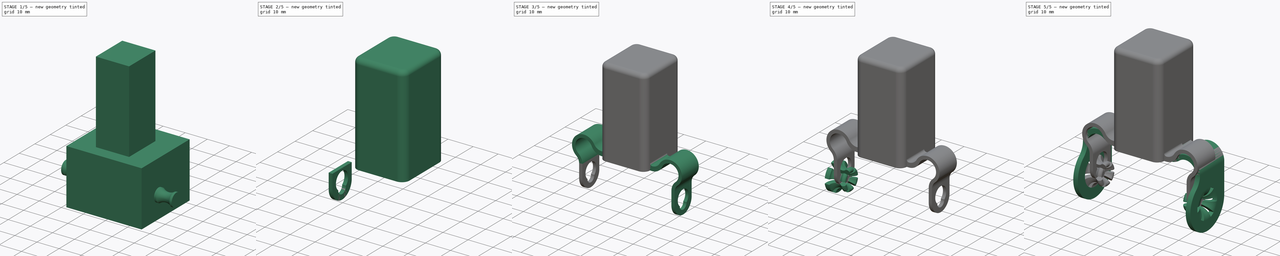
[diagram: build sequence overview — one tinted view per stage of 5, left to right]
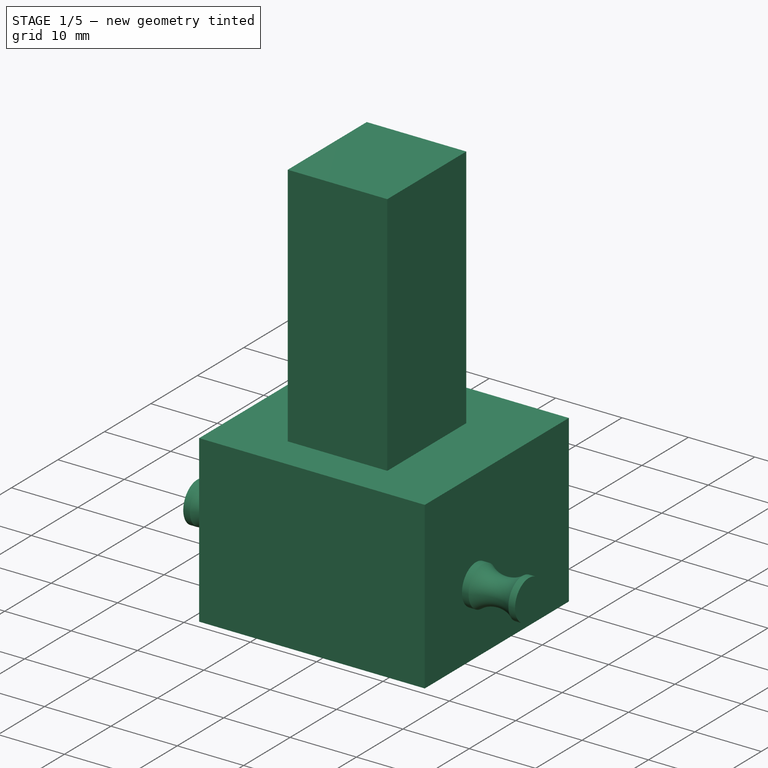
[diagram: stage 1 of 5 — iso view after this stage's code; geometry added in this stage tinted green]
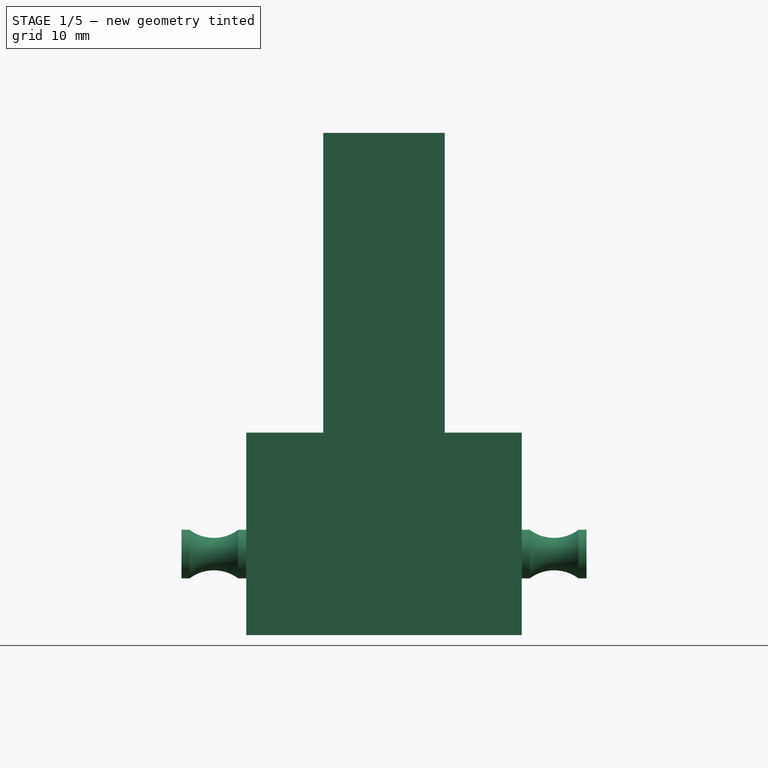
[diagram: stage 1 of 5 — front view after this stage's code; geometry added in this stage tinted green]
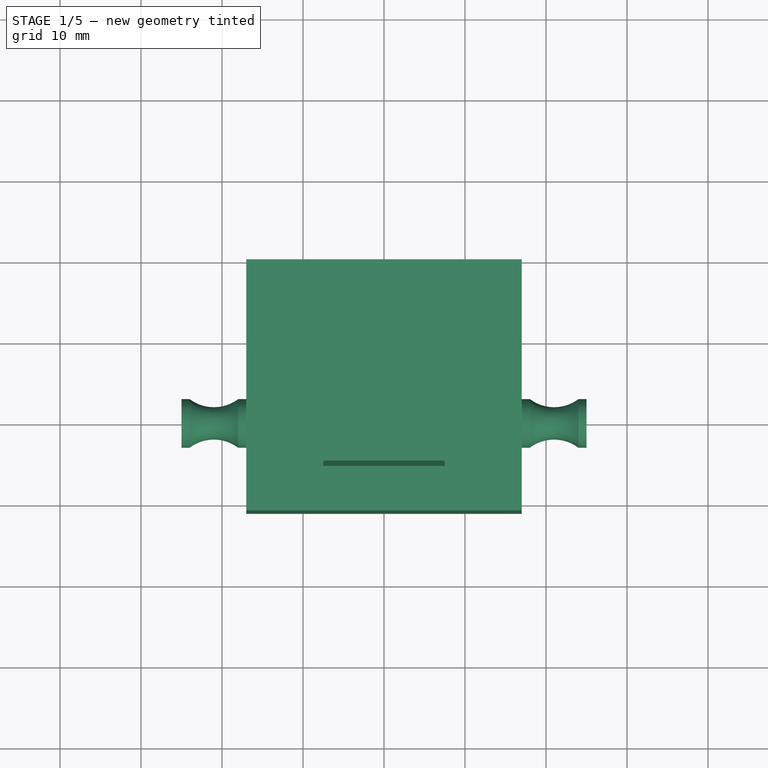
[diagram: stage 1 of 5 — top view after this stage's code; geometry added in this stage tinted green]
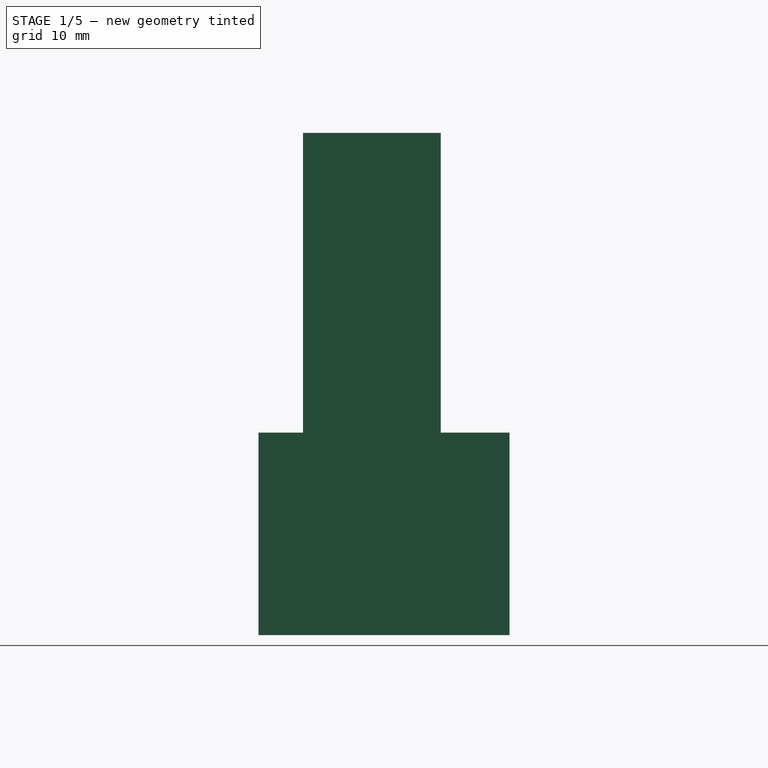
[diagram: stage 1 of 5 — right view after this stage's code; geometry added in this stage tinted green]
FCSTD DOCUMENT  (FreeCAD 1.0R39109 (Git))
Label: press machine rack shield
License: All rights reserved
objects: Sketcher::SketchObject×11, PartDesign::Pad×9, PartDesign::SubShapeBinder×5, PartDesign::Mirrored×3, PartDesign::Body×3, PartDesign::Revolution×2, PartDesign::Thickness×2, PartDesign::PolarPattern×1, PartDesign::Pocket×1
note: 80 computed .brp shape members not serialized (recipe doc carries the construction recipe); baked Part::Feature solids carry a one-line shape summary decoded from their .brp

FEATURE [Sketcher::SketchObject] Sketch014
  ArcFitTolerance = 1e-06
  AttachmentSupport = -> [XZ_Plane002]
  FullyConstrained = true
  MakeInternals = false
  MapMode = 5
  Placement = pos=(0,0,0) rot=(1,0,0;1.5708rad)
  sketch-geometry (6):
    g0: LineSegment StartX=-24 StartY=3 StartZ=0 EndX=-25 EndY=3 EndZ=0
    g1: LineSegment StartX=-25 StartY=3 StartZ=0 EndX=-25 EndY=0 EndZ=0
    g2: LineSegment StartX=-25 StartY=0 StartZ=0 EndX=-17 EndY=0 EndZ=0
    g3: LineSegment StartX=-17 StartY=0 StartZ=0 EndX=-17 EndY=3 EndZ=0
    g4: LineSegment StartX=-17 StartY=3 StartZ=0 EndX=-18 EndY=3 EndZ=0
    g5: ArcOfCircle CenterX=-21 CenterY=7 CenterZ=0 NormalX=0 NormalY=0 NormalZ=1 AngleXU=0 Radius=5 StartAngle=4.06889 EndAngle=5.35589
  constraints (19):
    c: Coincident(g0,g1)
    c: Coincident(g1,g2)
    c: Horizontal(g2)
    c: Coincident(g2,g3)
    c: Coincident(g3,g4)
    c: Coincident(g5,g0)
    c: Coincident(g5,g4)
    c: Horizontal(g0)
    c: Horizontal(g0,g4)
    c: Horizontal(g4)
    c: Vertical(g1)
    c: Vertical(g3)
    c: Equal(g0,g4)
    c: Distance(g0,g0) = 1
    c: Distance(g2,g2) = 8
    c: Distance(g1,g1) = 3
    c: Distance(g5,g2) = 2
    c: PointOnObject(g2,g-1)
    c: DistanceX(g2,g-1) = 17
FEATURE [PartDesign::Revolution] Revolution002
  Angle = 360
  Angle2 = 60
  Axis = (1,0,0)
  Base = (0,0,0)
  Placement = pos=(0,0,0) rot=(1,0,0;1.5708rad)
  Profile = -> Sketch014
  ReferenceAxis = -> Sketch014 [H_Axis]
  Suppressed = false
  Type = 0
FEATURE [Sketcher::SketchObject] Sketch016
  ArcFitTolerance = 1e-06
  AttachmentSupport = -> [XY_Plane002]
  FullyConstrained = true
  MakeInternals = false
  MapMode = 5
  sketch-geometry (4):
    g0: LineSegment StartX=0 StartY=20 StartZ=0 EndX=-17 EndY=20 EndZ=0
    g1: LineSegment StartX=-17 StartY=20 StartZ=0 EndX=-17 EndY=-11 EndZ=0
    g2: LineSegment StartX=-17 StartY=-11 StartZ=0 EndX=0 EndY=-11 EndZ=0
    g3: LineSegment StartX=0 StartY=-11 StartZ=0 EndX=0 EndY=20 EndZ=0
  constraints (12):
    c: Coincident(g0,g1)
    c: Coincident(g1,g2)
    c: Coincident(g2,g3)
    c: Coincident(g3,g0)
    c: Horizontal(g0)
    c: Horizontal(g2)
    c: Vertical(g1)
    c: Vertical(g3)
    c: PointOnObject(g0,g-2)
    c: Distance(g2,g2) = 17
    c: DistanceY(g1,g-1) = 11
    c: DistanceY(g-1,g0) = 20
FEATURE [PartDesign::Pad] Pad011
  BaseFeature = -> Revolution002
  Direction = (0,0,1)
  Length = 15
  Length2 = 10
  Placement = pos=(0,0,0) rot=(1,0,0;1.5708rad)
  Profile = -> Sketch016
  ReferenceAxis = -> Sketch016 [N_Axis]
  Suppressed = false
  Type = 4
FEATURE [Sketcher::SketchObject] Sketch017
  ArcFitTolerance = 1e-06
  AttachmentSupport = -> [Pad011]
  FullyConstrained = true
  MakeInternals = false
  MapMode = 5
  Placement = pos=(0,0,15) rot=(0,0,1;3.14159rad)
  sketch-geometry (4):
    g0: LineSegment StartX=0 StartY=5.5 StartZ=0 EndX=0 EndY=-11.5 EndZ=0
    g1: LineSegment StartX=0 StartY=-11.5 StartZ=0 EndX=7.5 EndY=-11.5 EndZ=0
    g2: LineSegment StartX=7.5 StartY=-11.5 StartZ=0 EndX=7.5 EndY=5.5 EndZ=0
    g3: LineSegment StartX=7.5 StartY=5.5 StartZ=0 EndX=0 EndY=5.5 EndZ=0
  constraints (12):
    c: Coincident(g0,g1)
    c: Coincident(g1,g2)
    c: Coincident(g2,g3)
    c: Coincident(g3,g0)
    c: Vertical(g0)
    c: Vertical(g2)
    c: Horizontal(g1)
    c: Horizontal(g3)
    c: PointOnObject(g0,g-2)
    c: Distance(g2,g2) = 17
    c: DistanceY(g-1,g0) = 5.5
    c: DistanceX(g3,g3) = 7.5
FEATURE [PartDesign::Pad] Pad012
  BaseFeature = -> Pad011
  Direction = (0,0,1)
  Length = 37
  Length2 = 10
  Placement = pos=(0,0,0) rot=(1,0,0;1.5708rad)
  Profile = -> Sketch017
  ReferenceAxis = -> Sketch017 [N_Axis]
  Suppressed = false
  Type = 0
FEATURE [PartDesign::Mirrored] Mirrored002
  BaseFeature = -> Pad012
  MirrorPlane = -> YZ_Plane002
  Placement = pos=(0,0,0) rot=(1,0,0;1.5708rad)
  Refine = true
  Suppressed = false
  TransformMode = 1
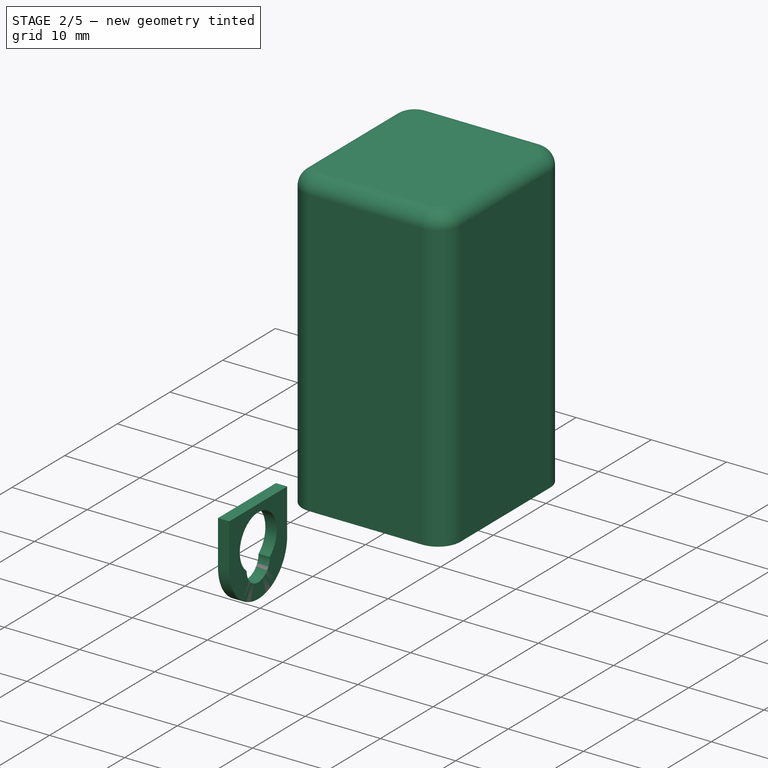
[diagram: stage 2 of 5 — iso view after this stage's code; geometry added in this stage tinted green]
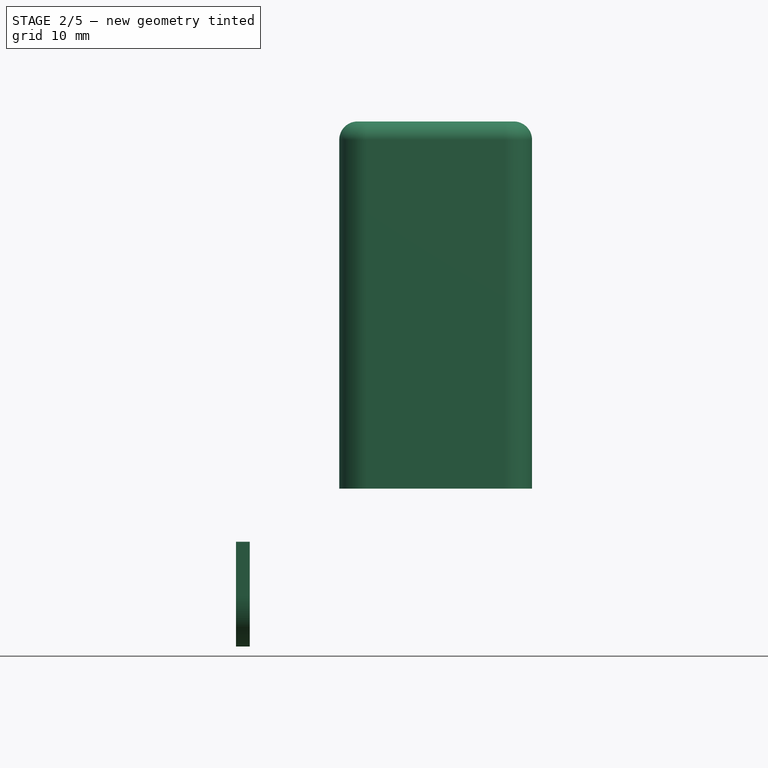
[diagram: stage 2 of 5 — front view after this stage's code; geometry added in this stage tinted green]
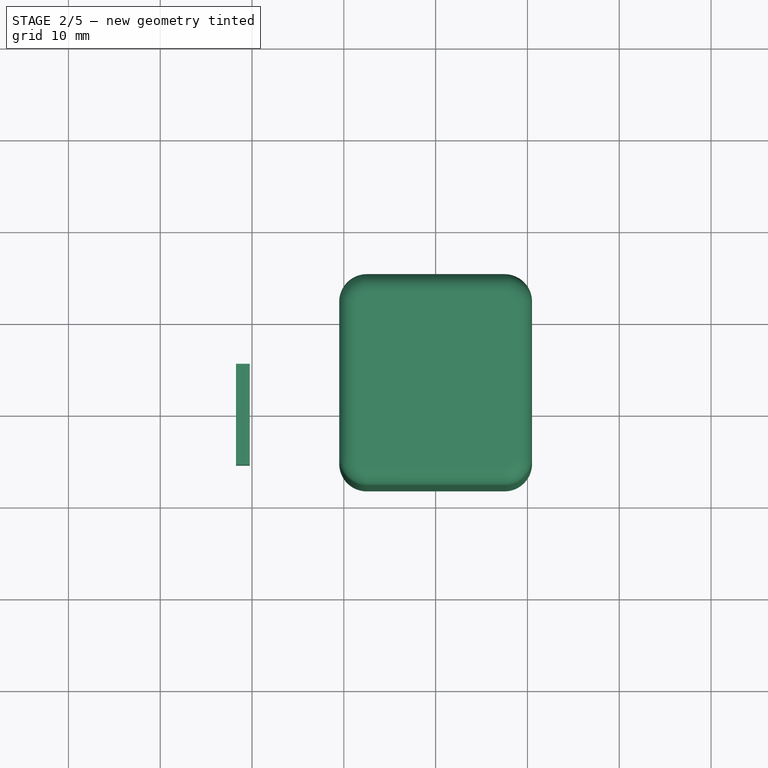
[diagram: stage 2 of 5 — top view after this stage's code; geometry added in this stage tinted green]
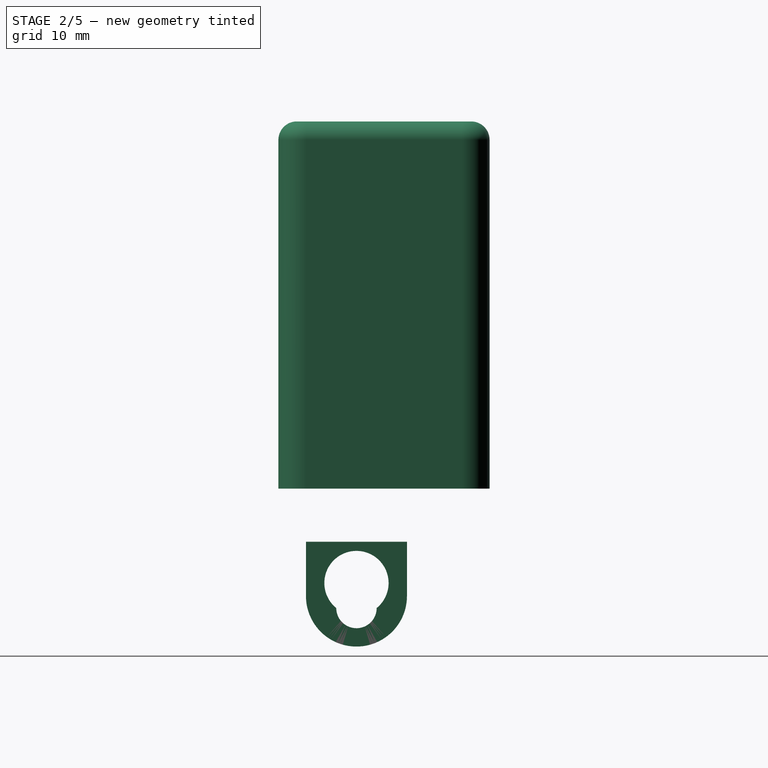
[diagram: stage 2 of 5 — right view after this stage's code; geometry added in this stage tinted green]
FEATURE [PartDesign::Body] Body004
  AllowCompound = true
  Group = -> [Binder002,Binder003,Pad013,Thickness001,Sketch018,Pad014,Binder004,Sketch019,Revolution003,PolarPattern001,Sketch023,Sketch020,Pad015,Sketch022,Pad016,Sketch,Pocket,Mirrored]
  Origin = -> Origin004
  Tip = -> Mirrored
FEATURE [PartDesign::SubShapeBinder] Binder
  BindCopyOnChange = 0
  BindMode = 0
  ClaimChildren = false
  Context = -> Body [Binder.]
  Fuse = false
  MakeFace = true
  OffsetFill = false
  OffsetIntersection = false
  OffsetJoinType = 0
  OffsetOpenResult = false
  PartialLoad = false
  Relative = true
  Support = -> [Body002[Mirrored002.Face13]]
  _Version = 2
FEATURE [PartDesign::SubShapeBinder] Binder005
  BindCopyOnChange = 0
  BindMode = 0
  ClaimChildren = false
  Context = -> Body [Binder005.]
  Fuse = false
  MakeFace = true
  Offset = 1
  OffsetFill = false
  OffsetIntersection = false
  OffsetJoinType = 0
  OffsetOpenResult = false
  PartialLoad = false
  Relative = true
  Support = -> [Binder[Edge8,Edge5,Edge6,Edge7]]
  _Version = 2
FEATURE [PartDesign::Pad] Pad
  Direction = (0,0,-1)
  Length = 38
  Length2 = 10
  Profile = -> Binder005
  Reversed = true
  Suppressed = false
  Type = 0
FEATURE [PartDesign::Thickness] Thickness
  Base = -> Pad [Face9]
  BaseFeature = -> Pad
  Intersection = false
  Join = 0
  Mode = 0
  SupportTransform = false
  Suppressed = false
  Value = 2
FEATURE [Sketcher::SketchObject] Sketch025
  ArcFitTolerance = 1e-06
  AttachmentOffset = pos=(0,0,-21) rot=(0,0,1;0rad)
  AttachmentSupport = -> [YZ_Plane]
  FullyConstrained = true
  MakeInternals = false
  MapMode = 5
  Placement = pos=(-21,0,0) rot=(0.57735,0.57735,0.57735;2.0944rad)
  sketch-geometry (6):
    g0: ArcOfCircle CenterX=0 CenterY=2 CenterZ=0 NormalX=0 NormalY=0 NormalZ=1 AngleXU=0 Radius=2.2 StartAngle=3.14159 EndAngle=6.28319
    g1: ArcOfCircle CenterX=1e-16 CenterY=4.72213 CenterZ=0 NormalX=0 NormalY=0 NormalZ=1 AngleXU=0 Radius=3.5 StartAngle=5.3921 EndAngle=10.3159
    g2: ArcOfCircle CenterX=0 CenterY=3.3 CenterZ=0 NormalX=0 NormalY=0 NormalZ=1 AngleXU=0 Radius=5.5 StartAngle=3.14159 EndAngle=6.28319
    g3: LineSegment StartX=-5.5 StartY=3.3 StartZ=0 EndX=-5.5 EndY=9.22213 EndZ=0
    g4: LineSegment StartX=5.5 StartY=3.3 StartZ=0 EndX=5.5 EndY=9.22213 EndZ=0
    g5: LineSegment StartX=5.5 StartY=9.22213 StartZ=0 EndX=-5.5 EndY=9.22213 EndZ=0
  constraints (21):
    c: PointOnObject(g0,g-2)
    c: Horizontal(g0,g0)
    c: Horizontal(g0,g0)
    c: Radius(g0) = 2.2
    c: Distance(g0,g-1) = 2
    c: Coincident(g1,g0)
    c: Coincident(g1,g0)
    c: Radius(g1) = 3.5
    c: PointOnObject(g2,g-2)
    c: Horizontal(g2,g2)
    c: Horizontal(g2,g2)
    c: Coincident(g3,g2)
    c: Vertical(g3)
    c: Coincident(g4,g2)
    c: Vertical(g4)
    c: Coincident(g5,g4)
    c: Coincident(g5,g3)
    c: Horizontal(g5)
    c: Distance(g1,g4) = 2
    c: Distance(g0,g2) = 2
    c: Distance(g1,g5) = 1
FEATURE [PartDesign::Pad] Pad017
  BaseFeature = -> Thickness
  Direction = (1,0,0)
  Length = 1.5
  Length2 = 10
  Midplane = true
  Profile = -> Sketch025
  ReferenceAxis = -> Sketch025 [N_Axis]
  Suppressed = false
  Type = 0
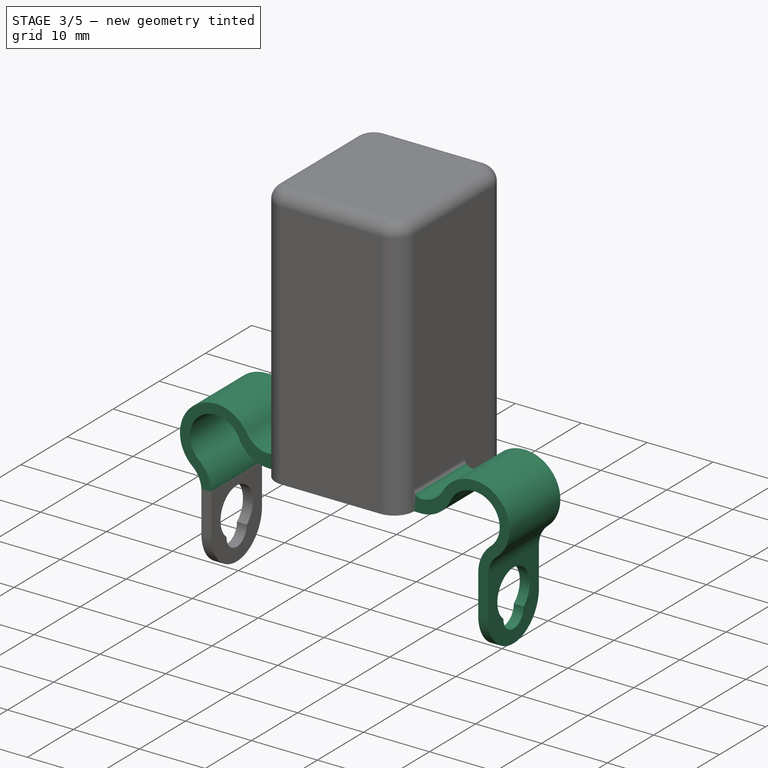
[diagram: stage 3 of 5 — iso view after this stage's code; geometry added in this stage tinted green]
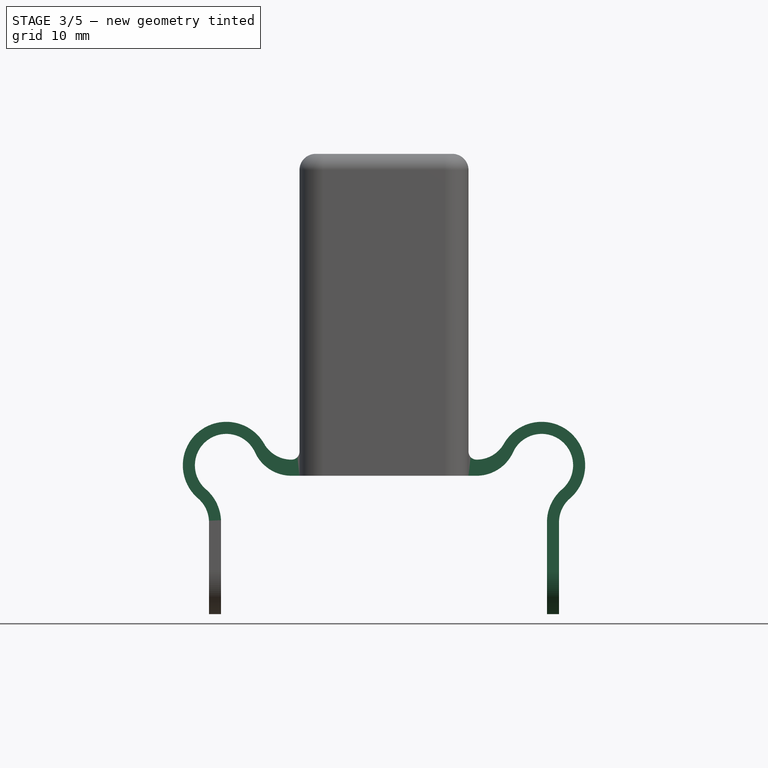
[diagram: stage 3 of 5 — front view after this stage's code; geometry added in this stage tinted green]
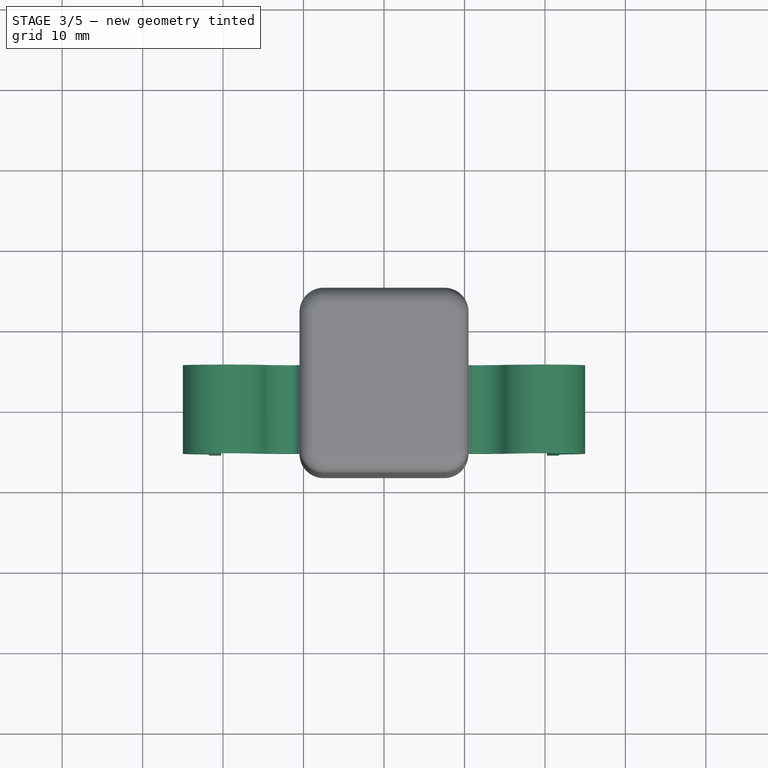
[diagram: stage 3 of 5 — top view after this stage's code; geometry added in this stage tinted green]
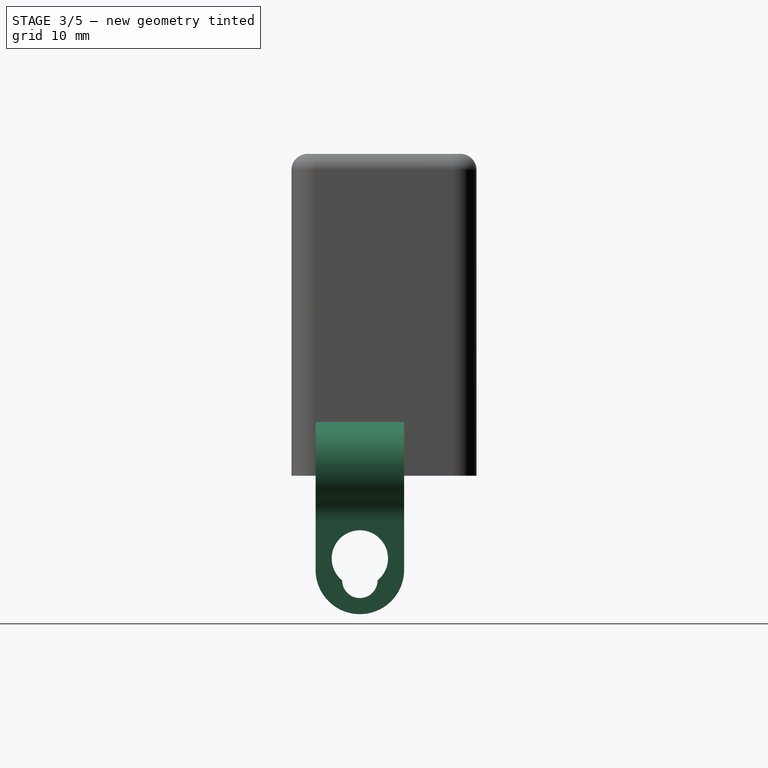
[diagram: stage 3 of 5 — right view after this stage's code; geometry added in this stage tinted green]
FEATURE [PartDesign::Body] Body002
  AllowCompound = true
  Group = -> [Sketch014,Revolution002,Sketch016,Pad011,Sketch017,Pad012,Mirrored002]
  Origin = -> Origin002
  Tip = -> Mirrored002
FEATURE [PartDesign::SubShapeBinder] Binder002
  BindCopyOnChange = 0
  BindMode = 0
  ClaimChildren = false
  Context = -> Body004 [Binder002.]
  Fuse = false
  MakeFace = true
  OffsetFill = false
  OffsetIntersection = false
  OffsetJoinType = 0
  OffsetOpenResult = false
  PartialLoad = false
  Relative = true
  Support = -> [Body002[Mirrored002.Face13]]
  _Version = 2
FEATURE [PartDesign::SubShapeBinder] Binder003
  BindCopyOnChange = 0
  BindMode = 0
  ClaimChildren = false
  Context = -> Body004 [Binder003.]
  Fuse = false
  MakeFace = true
  Offset = 1
  OffsetFill = false
  OffsetIntersection = false
  OffsetJoinType = 0
  OffsetOpenResult = false
  PartialLoad = false
  Relative = true
  Support = -> [Binder002[Edge8,Edge5,Edge6,Edge7]]
  _Version = 2
FEATURE [PartDesign::Pad] Pad013
  Direction = (0,0,-1)
  Length = 38
  Length2 = 10
  Profile = -> Binder003
  Reversed = true
  Suppressed = false
  Type = 0
FEATURE [PartDesign::Thickness] Thickness001
  Base = -> Pad013 [Face9]
  BaseFeature = -> Pad013
  Intersection = false
  Join = 0
  Mode = 0
  SupportTransform = false
  Suppressed = false
  Value = 2
FEATURE [Sketcher::SketchObject] Sketch026
  ArcFitTolerance = 1e-06
  AttachmentSupport = -> [XZ_Plane]
  ExternalGeometry = -> [Binder,Pad017]
  FullyConstrained = true
  MakeInternals = false
  MapMode = 5
  Placement = pos=(0,0,0) rot=(1,0,0;1.5708rad)
  sketch-geometry (13):
    g0: ArcOfCircle CenterX=-11.5 CenterY=18 CenterZ=0 NormalX=0 NormalY=0 NormalZ=1 AngleXU=0 Radius=1 StartAngle=4.71239 EndAngle=6.28319
    g1: LineSegment [constr] StartX=-11.5 StartY=17 StartZ=0 EndX=-11.5 EndY=15 EndZ=0
    g2: LineSegment StartX=-11.5 StartY=15 StartZ=0 EndX=-10.5 EndY=15 EndZ=0
    g3: LineSegment StartX=-10.5 StartY=15 StartZ=0 EndX=-10.5 EndY=18 EndZ=0
    g4: ArcOfCircle CenterX=-11.5 CenterY=19.9882 CenterZ=0 NormalX=0 NormalY=0 NormalZ=1 AngleXU=0 Radius=4.98818 StartAngle=3.57001 EndAngle=4.71239
    g5: ArcOfCircle CenterX=-19.5921 CenterY=16.2925 CenterZ=0 NormalX=0 NormalY=0 NormalZ=1 AngleXU=0 Radius=3.9079 StartAngle=0.428413 EndAngle=4.00332
    g6: ArcOfCircle CenterX=-19.5921 CenterY=16.2925 CenterZ=0 NormalX=0 NormalY=0 NormalZ=1 AngleXU=0 Radius=5.4079 StartAngle=0.518338 EndAngle=4.00332
    g7: LineSegment StartX=-21.75 StartY=9.22213 StartZ=0 EndX=-20.25 EndY=9.22213 EndZ=0
    g8: ArcOfCircle CenterX=-11.5 CenterY=20.9079 CenterZ=0 NormalX=0 NormalY=0 NormalZ=1 AngleXU=0 Radius=3.9079 StartAngle=3.65993 EndAngle=4.71239
    g9: LineSegment [constr] StartX=-23.1133 StartY=12.1881 StartZ=0 EndX=-22.1367 EndY=13.3265 EndZ=0
    g10: ArcOfCircle CenterX=-25.6579 CenterY=9.22213 CenterZ=0 NormalX=0 NormalY=0 NormalZ=1 AngleXU=0 Radius=3.9079 StartAngle=2.7e-15 EndAngle=0.861724
    g11: ArcOfCircle CenterX=-25.6579 CenterY=9.22213 CenterZ=0 NormalX=0 NormalY=0 NormalZ=1 AngleXU=0 Radius=5.4079 StartAngle=3.412e-13 EndAngle=0.861724
    g12: LineSegment [constr] StartX=-19.5921 StartY=16.2925 StartZ=0 EndX=-25 EndY=16.2925 EndZ=0
  constraints (36):
    c: Coincident(g1,g0)
    c: Vertical(g1)
    c: Coincident(g2,g1)
    c: Horizontal(g2)
    c: Coincident(g3,g2)
    c: Coincident(g3,g0)
    c: Vertical(g3)
    c: Horizontal(g2,g-3)
    c: Distance(g1,g1) = 2
    c: Radius(g0) = 1
    c: Vertical(g0,g0)
    c: Distance(g2,g-2) = 10.5
    c: Coincident(g4,g1)
    c: Horizontal(g0,g0)
    c: Coincident(g6,g5)
    c: Coincident(g7,g-4)
    c: Tangent(g5,g4) = 1.5708
    c: Tangent(g8,g6) = 1.5708
    c: Tangent(g4,g2)
    c: Coincident(g9,g6)
    c: Coincident(g9,g5)
    c: Equal(g9,g7)
    c: PointOnObject(g5,g9)
    c: Coincident(g7,g-4)
    c: Coincident(g10,g7)
    c: Coincident(g11,g7)
    c: Tangent(g10,g6) = 1.5708
    c: Tangent(g11,g5) = 1.5708
    c: Perpendicular(g10,g7)
    c: Tangent(g8,g0) = -1.5708
    c: Coincident(g12,g5)
    c: PointOnObject(g12,g6)
    c: Horizontal(g12)
    c: Distance(g12,g-2) = 25
    c: Equal(g10,g5)
    c: Equal(g5,g8)
FEATURE [PartDesign::Pad] Pad018
  BaseFeature = -> Pad017
  Direction = (0,-1,2e-16)
  Length = 11
  Length2 = 10
  Midplane = true
  Profile = -> Sketch026
  ReferenceAxis = -> Sketch026 [N_Axis]
  Suppressed = false
  Type = 0
FEATURE [PartDesign::Mirrored] Mirrored003
  BaseFeature = -> Pad018
  MirrorPlane = -> YZ_Plane
  Originals = -> [Pad017,Pad018]
  Suppressed = false
  TransformMode = 0
FEATURE [PartDesign::Body] Body
  AllowCompound = true
  Group = -> [Binder,Binder005,Pad,Thickness,Sketch025,Pad017,Sketch026,Pad018,Mirrored003]
  Origin = -> Origin
  Tip = -> Mirrored003
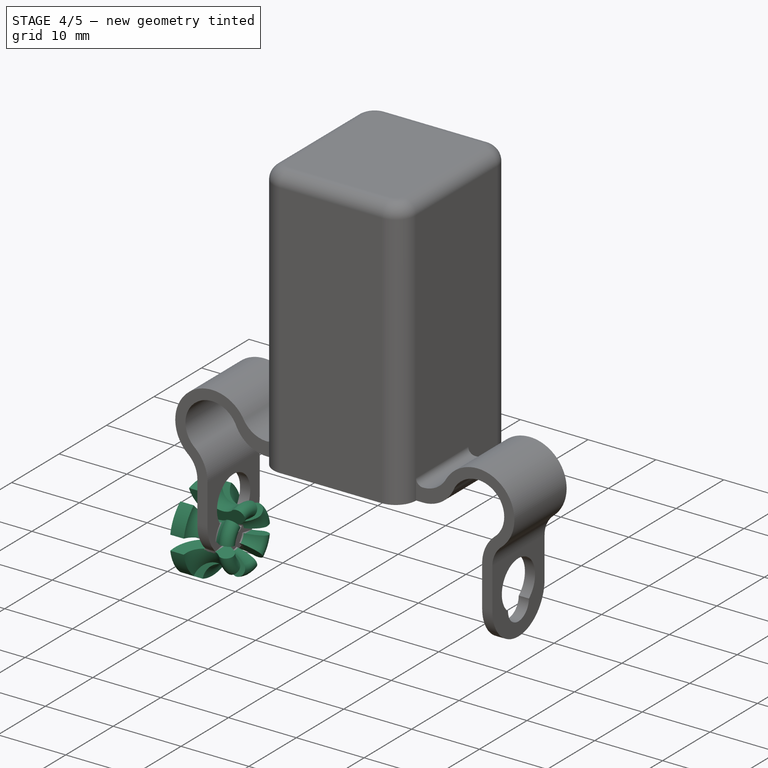
[diagram: stage 4 of 5 — iso view after this stage's code; geometry added in this stage tinted green]
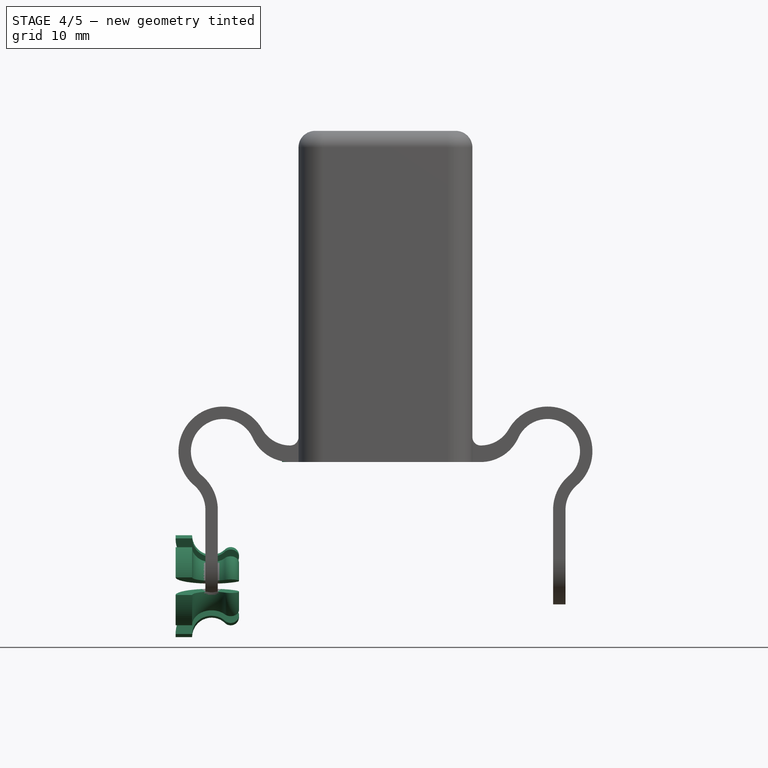
[diagram: stage 4 of 5 — front view after this stage's code; geometry added in this stage tinted green]
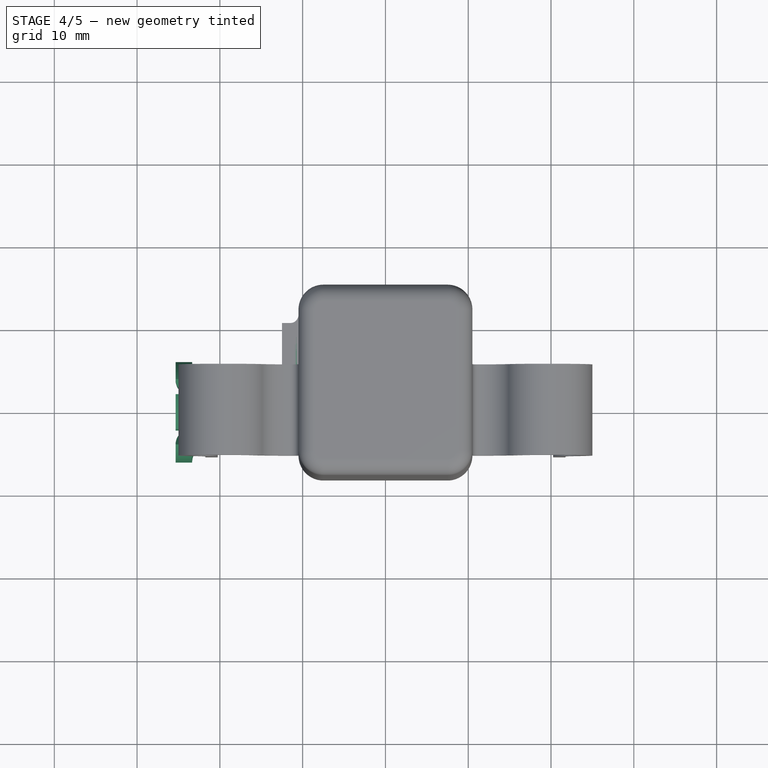
[diagram: stage 4 of 5 — top view after this stage's code; geometry added in this stage tinted green]
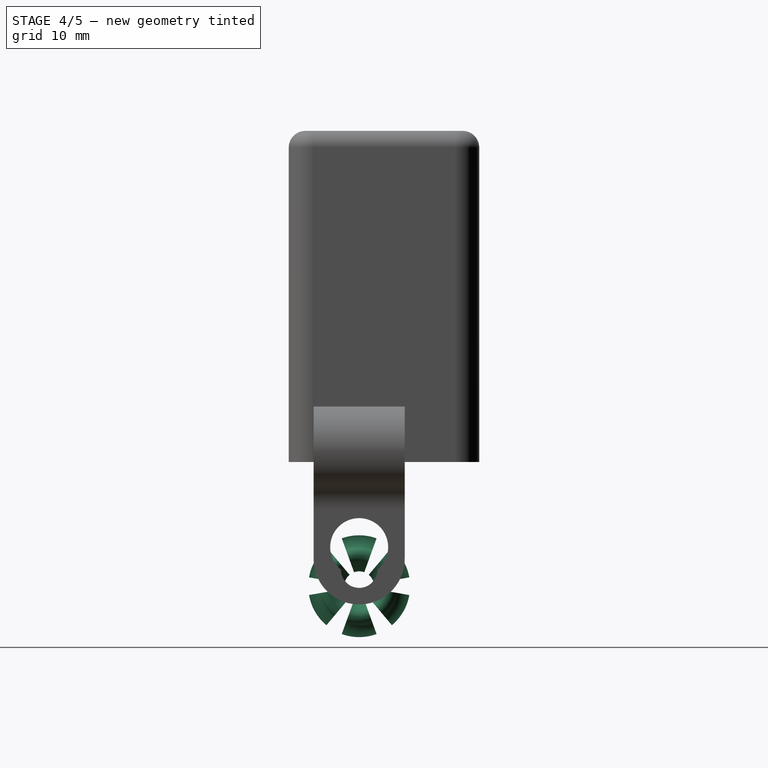
[diagram: stage 4 of 5 — right view after this stage's code; geometry added in this stage tinted green]
FEATURE [Sketcher::SketchObject] Sketch018
  ArcFitTolerance = 1e-06
  AttachmentSupport = -> [Binder002]
  ExternalGeometry = -> [Thickness001,Binder002]
  FullyConstrained = true
  MakeInternals = false
  MapMode = 5
  Placement = pos=(0,0,15) rot=(0,0,1;0rad)
  sketch-geometry (6):
    g0: LineSegment StartX=-10.5 StartY=11.5 StartZ=0 EndX=-10.5 EndY=-5.5 EndZ=0
    g1: ArcOfCircle CenterX=-11.5 CenterY=11.5 CenterZ=0 NormalX=0 NormalY=0 NormalZ=1 AngleXU=0 Radius=1 StartAngle=4.71239 EndAngle=6.28319
    g2: ArcOfCircle CenterX=-11.5 CenterY=-5.5 CenterZ=0 NormalX=0 NormalY=0 NormalZ=1 AngleXU=0 Radius=1 StartAngle=4e-16 EndAngle=1.5708
    g3: LineSegment StartX=-11.5 StartY=10.5 StartZ=0 EndX=-12.5 EndY=10.5 EndZ=0
    g4: LineSegment StartX=-12.5 StartY=10.5 StartZ=0 EndX=-12.5 EndY=-4.5 EndZ=0
    g5: LineSegment StartX=-12.5 StartY=-4.5 StartZ=0 EndX=-11.5 EndY=-4.5 EndZ=0
  constraints (15):
    c: Coincident(g0,g-3)
    c: Coincident(g0,g-3)
    c: Tangent(g1,g0) = 1.5708
    c: Tangent(g2,g0) = 1.5708
    c: Vertical(g2,g2)
    c: Radius(g1) = 1
    c: Equal(g1,g2)
    c: Horizontal(g3)
    c: Coincident(g3,g4)
    c: Coincident(g4,g5)
    c: Horizontal(g5)
    c: Coincident(g2,g5)
    c: Tangent(g1,g3) = 1.5708
    c: Vertical(g4)
    c: Distance(g5,g5) = 1
FEATURE [PartDesign::Pad] Pad014
  BaseFeature = -> Thickness001
  Direction = (0,0,1)
  Length = 2
  Length2 = 10
  Profile = -> Sketch018
  ReferenceAxis = -> Sketch018 [N_Axis]
  Suppressed = false
  Type = 0
FEATURE [PartDesign::SubShapeBinder] Binder004
  BindCopyOnChange = 0
  BindMode = 0
  ClaimChildren = false
  Context = -> Body004 [Binder004.]
  Fuse = false
  MakeFace = true
  OffsetFill = false
  OffsetIntersection = false
  OffsetJoinType = 0
  OffsetOpenResult = false
  PartialLoad = false
  Relative = true
  Support = -> [Body002[Sketch014.]]
  _Version = 2
FEATURE [Sketcher::SketchObject] Sketch019
  ArcFitTolerance = 1e-06
  AttachmentSupport = -> [XZ_Plane004]
  ExternalGeometry = -> [Binder004]
  FullyConstrained = true
  MakeInternals = false
  MapMode = 5
  Placement = pos=(0,0,0) rot=(1,0,0;1.5708rad)
  sketch-geometry (5):
    g0: ArcOfCircle CenterX=-21 CenterY=6.15 CenterZ=0 NormalX=0 NormalY=0 NormalZ=1 AngleXU=0 Radius=4.35 StartAngle=3.14159 EndAngle=5.4734
    g1: ArcOfCircle [constr] CenterX=-24.35 CenterY=6.15 CenterZ=0 NormalX=0 NormalY=0 NormalZ=1 AngleXU=0 Radius=1 StartAngle=-1.07e-14 EndAngle=3.14159
    g2: ArcOfCircle CenterX=-18.6897 CenterY=3.72414 CenterZ=0 NormalX=0 NormalY=0 NormalZ=1 AngleXU=0 Radius=1 StartAngle=5.4734 EndAngle=8.61499
    g3: ArcOfCircle CenterX=-21 CenterY=6.15 CenterZ=0 NormalX=0 NormalY=0 NormalZ=1 AngleXU=0 Radius=2.35 StartAngle=3.14159 EndAngle=5.4734
    g4: LineSegment StartX=-25.35 StartY=6.15 StartZ=0 EndX=-23.35 EndY=6.15 EndZ=0
  constraints (12):
    c: Coincident(g0,g3)
    c: Tangent(g3,g2) = 1.5708
    c: Tangent(g3,g1) = 1.5708
    c: Tangent(g0,g2) = -1.5708
    c: Tangent(g0,g1) = -1.5708
    c: Radius(g2) = 1
    c: Coincident(g0,g-3)
    c: Horizontal(g1,g0)
    c: Coincident(g4,g0)
    c: Coincident(g4,g1)
    c: PointOnObject(g-3,g0)
    c: Distance(g-3,g0) = -0.2
FEATURE [PartDesign::Revolution] Revolution003
  Angle = 40
  Angle2 = 60
  Axis = (1,0,0)
  Base = (0,0,0)
  BaseFeature = -> Pad014
  Midplane = true
  Profile = -> Sketch019
  ReferenceAxis = -> Sketch019 [H_Axis]
  Suppressed = false
  Type = 0
FEATURE [PartDesign::PolarPattern] PolarPattern001
  Angle = 360
  Axis = -> X_Axis004
  BaseFeature = -> Revolution003
  Mode = 0
  Occurrences = 6
  Offset = 120
  Originals = -> [Revolution003]
  Suppressed = false
  TransformMode = 0
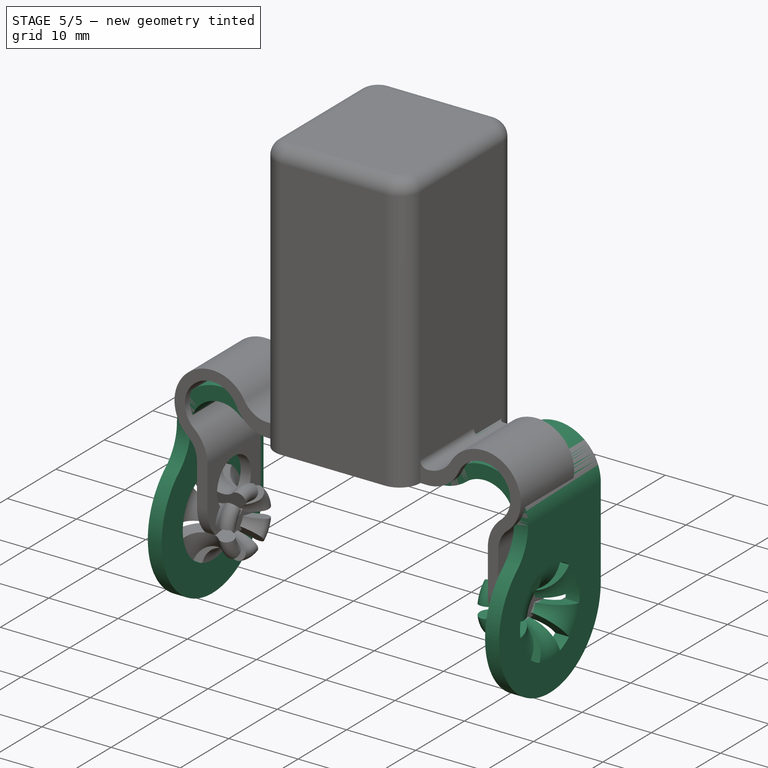
[diagram: stage 5 of 5 — iso view after this stage's code; geometry added in this stage tinted green]
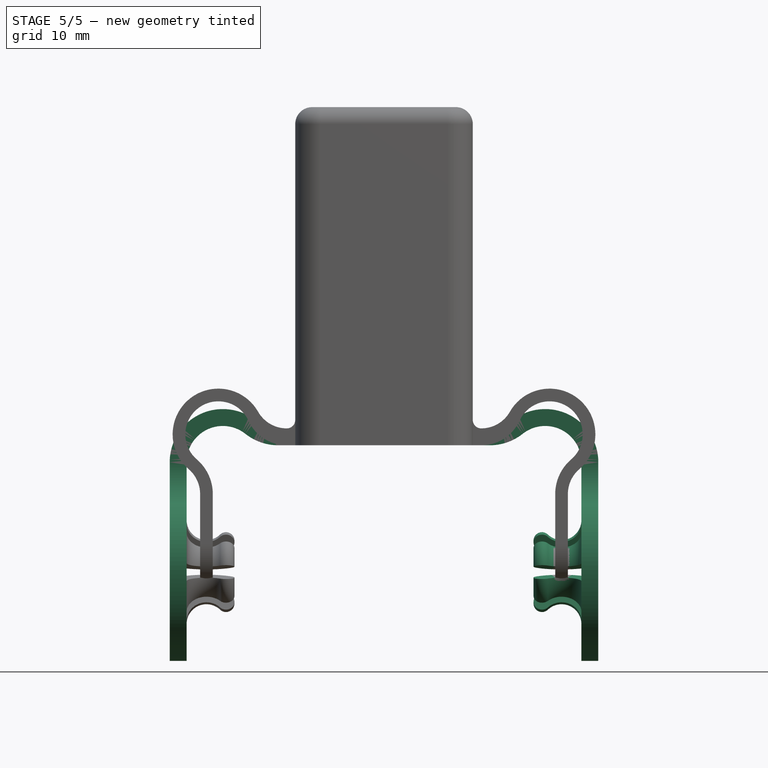
[diagram: stage 5 of 5 — front view after this stage's code; geometry added in this stage tinted green]
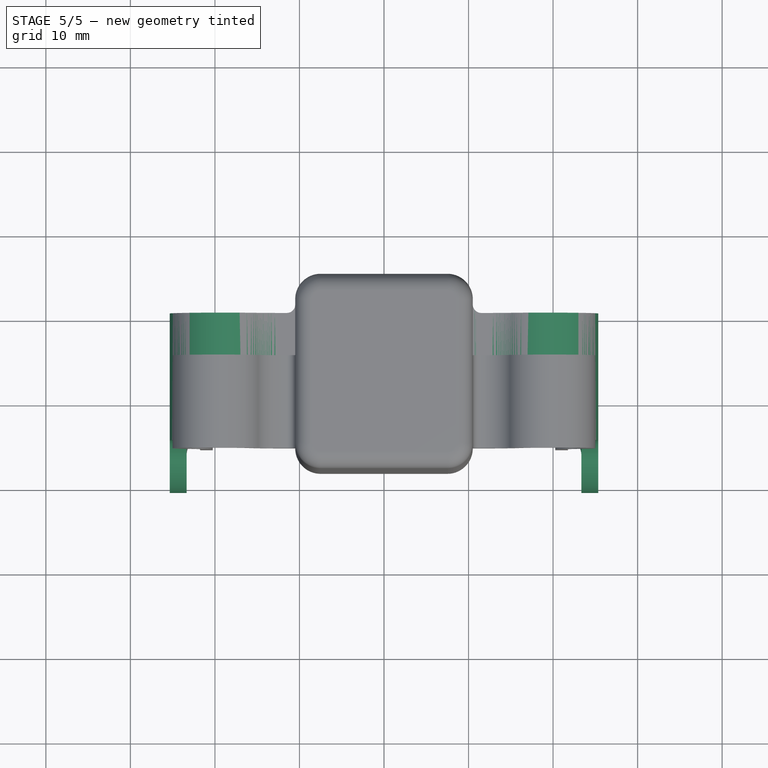
[diagram: stage 5 of 5 — top view after this stage's code; geometry added in this stage tinted green]
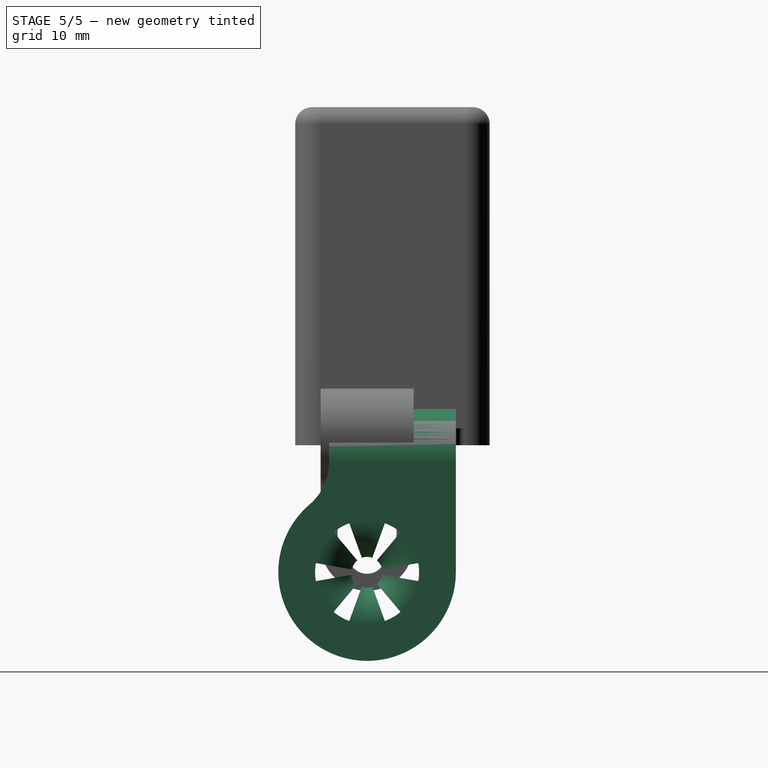
[diagram: stage 5 of 5 — right view after this stage's code; geometry added in this stage tinted green]
FEATURE [Sketcher::SketchObject] Sketch
  ArcFitTolerance = 1e-06
  AttachmentSupport = -> [XZ_Plane004]
  FullyConstrained = false
  MakeInternals = false
  MapMode = 5
  Placement = pos=(0,0,0) rot=(1,0,0;1.5708rad)
  sketch-geometry (4):
    g0: LineSegment StartX=0 StartY=75.8623 StartZ=0 EndX=0 EndY=-36.7018 EndZ=0
    g1: LineSegment StartX=0 StartY=-36.7018 StartZ=0 EndX=58.637 EndY=-36.7018 EndZ=0
    g2: LineSegment StartX=58.637 StartY=-36.7018 StartZ=0 EndX=58.637 EndY=75.8623 EndZ=0
    g3: LineSegment StartX=58.637 StartY=75.8623 StartZ=0 EndX=0 EndY=75.8623 EndZ=0
  constraints (9):
    c: Coincident(g0,g1)
    c: Coincident(g1,g2)
    c: Coincident(g2,g3)
    c: Coincident(g3,g0)
    c: Vertical(g0)
    c: Vertical(g2)
    c: Horizontal(g1)
    c: Horizontal(g3)
    c: PointOnObject(g0,g-2)
FEATURE [Sketcher::SketchObject] Sketch023
  ArcFitTolerance = 1e-06
  AttachmentSupport = -> [XY_Plane004]
  ExternalGeometry = -> [Sketch019]
  FullyConstrained = true
  MakeInternals = false
  MapMode = 5
  sketch-geometry (1):
    g0: LineSegment StartX=-25.35 StartY=0 StartZ=0 EndX=0 EndY=0 EndZ=0
  constraints (2):
    c: Coincident(g0,g-3)
    c: Coincident(g0,g-1)
FEATURE [Sketcher::SketchObject] Sketch020
  ArcFitTolerance = 1e-06
  AttachmentSupport = -> [Sketch023,X_Axis004,Y_Axis004]
  ExternalGeometry = -> [Pad014,Sketch019]
  FullyConstrained = true
  MakeInternals = false
  MapMode = 47
  Placement = pos=(-25.35,0,0) rot=(0.57735,0.57735,0.57735;2.0944rad)
  sketch-geometry (6):
    g0: Circle CenterX=0 CenterY=0 CenterZ=0 NormalX=0 NormalY=0 NormalZ=1 AngleXU=0 Radius=6.15
    g1: ArcOfCircle CenterX=0 CenterY=0 CenterZ=0 NormalX=0 NormalY=0 NormalZ=1 AngleXU=0 Radius=10.5 StartAngle=2.27678 EndAngle=6.28319
    g2: ArcOfCircle [constr] CenterX=3 CenterY=13 CenterZ=0 NormalX=0 NormalY=0 NormalZ=1 AngleXU=0 Radius=7.5 StartAngle=0 EndAngle=3.14159
    g3: LineSegment StartX=10.5 StartY=-2.6e-15 StartZ=0 EndX=10.5 EndY=13 EndZ=0
    g4: LineSegment StartX=-4.5 StartY=13 StartZ=0 EndX=10.5 EndY=13 EndZ=0
    g5: ArcOfCircle CenterX=-11.0833 CenterY=13 CenterZ=0 NormalX=0 NormalY=0 NormalZ=1 AngleXU=0 Radius=6.58333 StartAngle=5.41837 EndAngle=6.28319
  constraints (15):
    c: Coincident(g0,g-1)
    c: Tangent(g1,g3) = -1.5708
    c: Vertical(g3)
    c: Coincident(g1,g0)
    c: Tangent(g2,g3) = -1.5708
    c: Vertical(g2,g-3)
    c: Horizontal(g2,g2)
    c: Vertical(g2,g-3)
    c: Coincident(g4,g2)
    c: Coincident(g4,g2)
    c: DistanceY(g2,g-3) = 2
    c: PointOnObject(g-4,g0)
    c: Coincident(g5,g2)
    c: Horizontal(g5,g2)
    c: Tangent(g5,g1) = 1.5708
FEATURE [PartDesign::Pad] Pad015
  BaseFeature = -> PolarPattern001
  Direction = (1,0,0)
  Length = 2
  Length2 = 10
  Profile = -> Sketch020
  ReferenceAxis = -> Sketch020 [N_Axis]
  Suppressed = false
  Type = 0
FEATURE [Sketcher::SketchObject] Sketch022
  ArcFitTolerance = 1e-06
  AttachmentSupport = -> [Pad015]
  ExternalGeometry = -> [Pad015]
  FullyConstrained = true
  MakeInternals = false
  MapMode = 5
  Placement = pos=(0,-4.5,0) rot=(1,0,0;1.5708rad)
  sketch-geometry (6):
    g0: ArcOfCircle CenterX=-12.5 CenterY=21.2854 CenterZ=0 NormalX=0 NormalY=0 NormalZ=1 AngleXU=0 Radius=6.28539 StartAngle=4.04235 EndAngle=4.71239
    g1: ArcOfCircle CenterX=-12.5 CenterY=21.2854 CenterZ=0 NormalX=0 NormalY=0 NormalZ=1 AngleXU=0 Radius=4.28539 StartAngle=4.04235 EndAngle=4.71239
    g2: ArcOfCircle CenterX=-19.0646 CenterY=13 CenterZ=0 NormalX=0 NormalY=0 NormalZ=1 AngleXU=0 Radius=4.28539 StartAngle=0.90076 EndAngle=3.1416
    g3: ArcOfCircle CenterX=-19.0646 CenterY=13 CenterZ=0 NormalX=0 NormalY=0 NormalZ=1 AngleXU=0 Radius=6.28539 StartAngle=0.90076 EndAngle=3.1416
    g4: LineSegment StartX=-25.35 StartY=13 StartZ=0 EndX=-23.35 EndY=13 EndZ=0
    g5: LineSegment StartX=-12.5 StartY=15 StartZ=0 EndX=-12.5 EndY=17 EndZ=0
  constraints (14):
    c: Coincident(g0,g-3)
    c: Coincident(g1,g-3)
    c: Vertical(g1,g1)
    c: Coincident(g0,g1)
    c: Coincident(g2,g-4)
    c: Coincident(g3,g-4)
    c: Tangent(g3,g1) = 1.5708
    c: Tangent(g2,g0) = 1.5708
    c: Coincident(g2,g3)
    c: Coincident(g4,g3)
    c: Coincident(g4,g2)
    c: Coincident(g5,g0)
    c: Coincident(g5,g1)
    c: Equal(g1,g2)
FEATURE [PartDesign::Pad] Pad016
  BaseFeature = -> Pad015
  Direction = (0,-1,2e-16)
  Length = 10
  Length2 = 10
  Profile = -> Sketch022
  ReferenceAxis = -> Sketch022 [N_Axis]
  Refine = true
  Reversed = true
  Suppressed = false
  Type = 3
  UpToFace = -> Pad015 [Face72]
FEATURE [PartDesign::Pocket] Pocket
  BaseFeature = -> Pad016
  Direction = (0,1,-2e-16)
  Length = 5
  Length2 = 5
  Midplane = true
  Profile = -> Sketch
  ReferenceAxis = -> Sketch [N_Axis]
  Suppressed = false
  Type = 1
FEATURE [PartDesign::Mirrored] Mirrored
  BaseFeature = -> Pocket
  MirrorPlane = -> YZ_Plane004
  Refine = true
  Suppressed = false
  TransformMode = 1
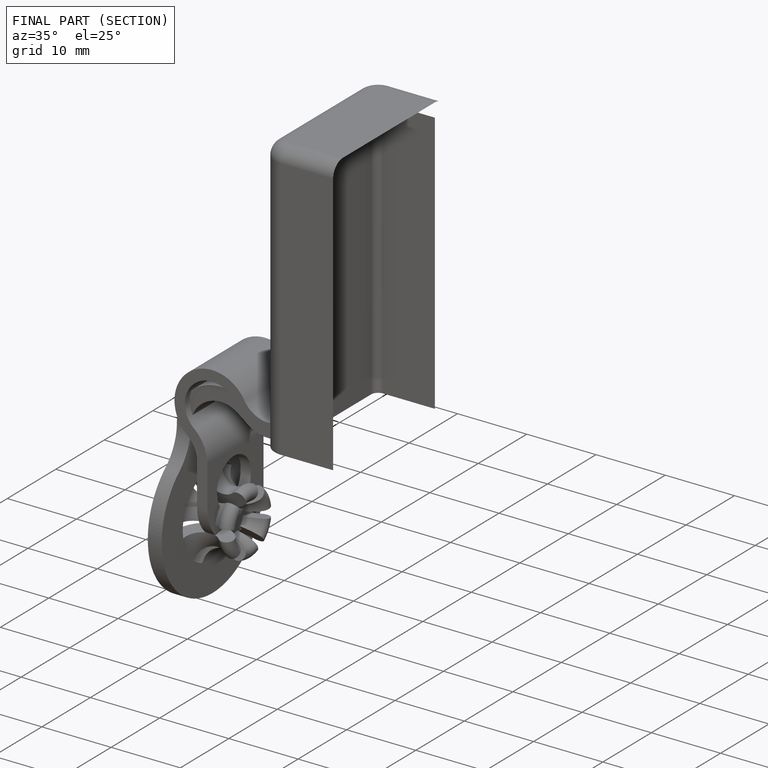
[diagram: finished part — half-section view (interior)]
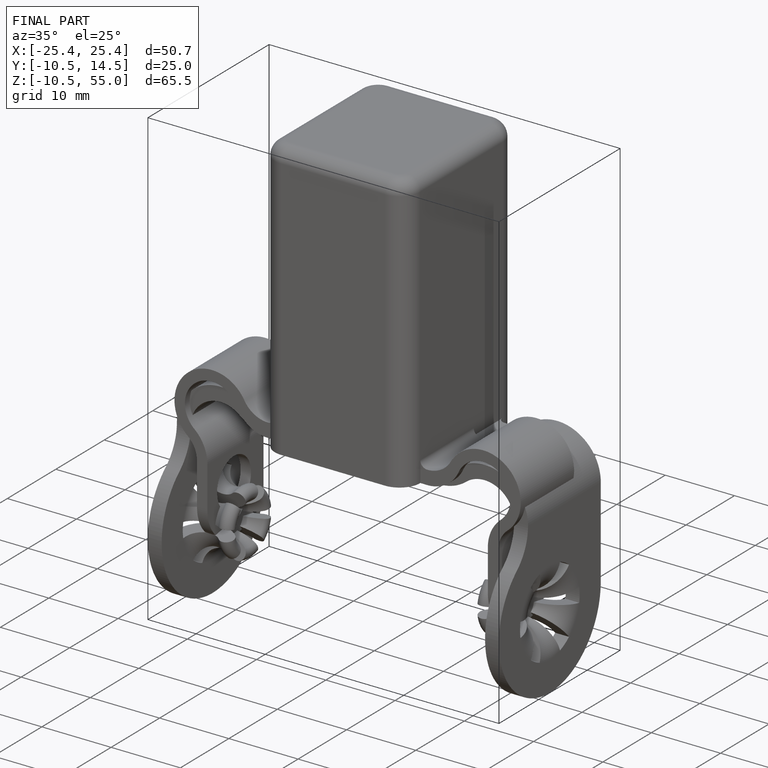
[diagram: finished part — iso view with bounding-box wireframe]
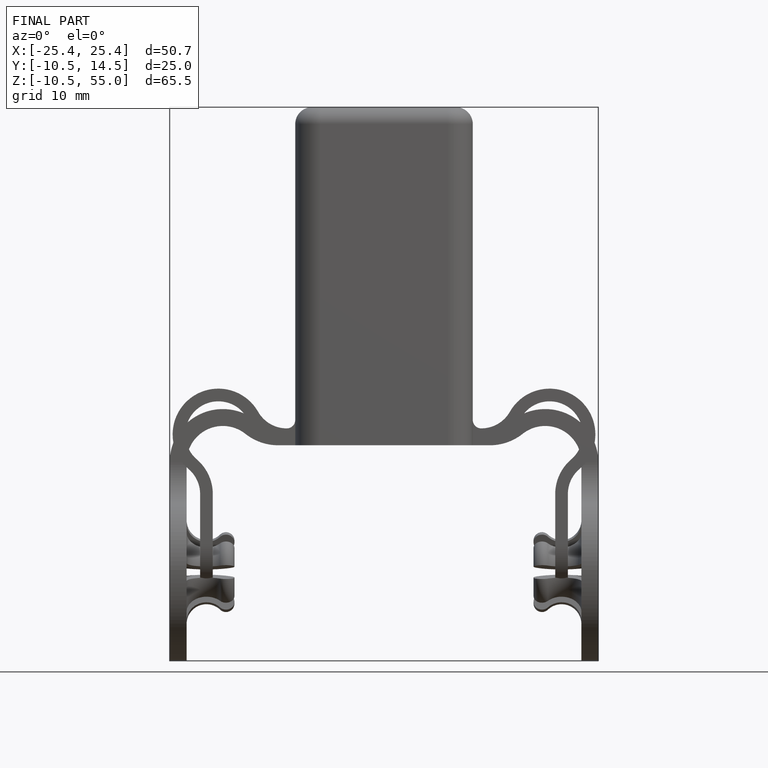
[diagram: finished part — front view with bounding-box wireframe]
